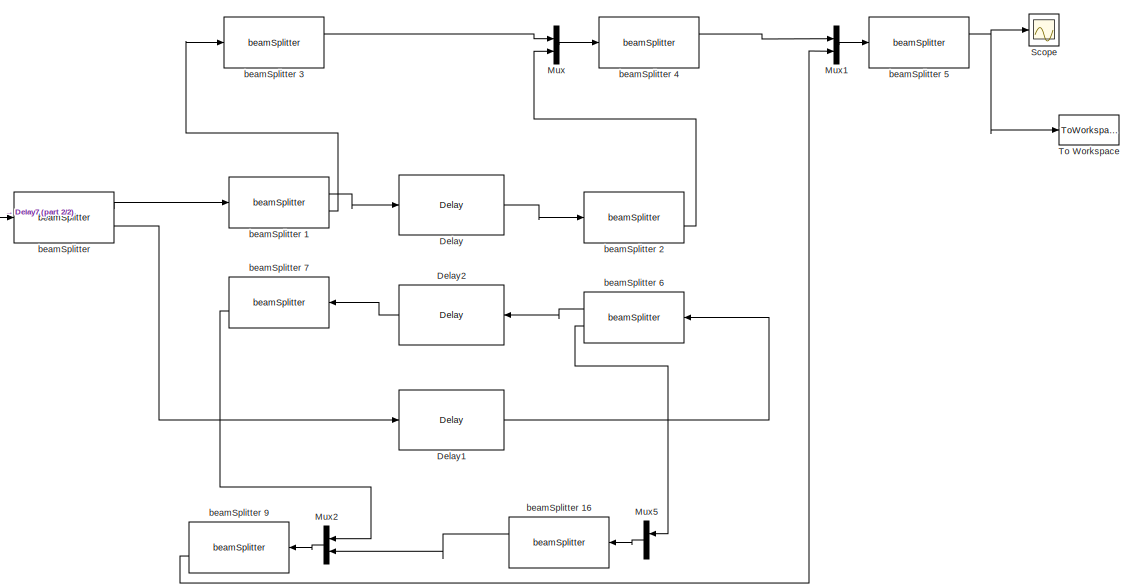
[diagram: root canvas - part 1/2, center side, full height]
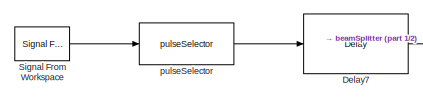
[diagram: root canvas - part 2/2, middle left region]
MODEL slx_35e18f676be5
KIND model
CONFIG InitFcn = initialization;
BLOCK [Reference] Delay  REF=BlockLib/Delay
  DelayAmt = delays(2)-delays(1)
  Ports = [1, 1]
  SourceBlock = BlockLib/Delay
BLOCK [Reference] Delay1  REF=BlockLib/Delay
  DelayAmt = delays(3)-delays(1)
  Ports = [1, 1]
  SourceBlock = BlockLib/Delay
BLOCK [Reference] Delay2  REF=BlockLib/Delay
  DelayAmt = delays(2)-delays(1)
  Ports = [1, 1]
  SourceBlock = BlockLib/Delay
BLOCK [Reference] Delay7  REF=BlockLib/Delay
  DelayAmt = delays(1)
  Ports = [1, 1]
  SourceBlock = BlockLib/Delay
BLOCK [Mux] Mux
  DisplayOption = bar
  Inputs = 2
  Ports = [2, 1]
BLOCK [Mux] Mux1
  DisplayOption = bar
  Inputs = 2
  Ports = [2, 1]
BLOCK [Mux] Mux2
  DisplayOption = bar
  Inputs = 2
  Ports = [2, 1]
BLOCK [Mux] Mux5
  DisplayOption = bar
  Inputs = 2
  Ports = [2, 1]
BLOCK [Scope] Scope
  Floating = off
  NumInputPorts = 1
  Ports = [1]
  ShowLegends = off
BLOCK [Reference] Signal From Workspace  REF=dspsrcs4/Signal From
Workspace
  OutputAfterFinalValue = Setting to zero
  Ports = [0, 1]
  SourceBlock = dspsrcs4/Signal From\nWorkspace
  SourceType = Signal From Workspace
  Ts = 1
  X = inputsignal
  ignoreOrWarnInputAndFrameLengths = off
  nsamps = 1
BLOCK [ToWorkspace] To Workspace
  FixptAsFi = on
  MaxDataPoints = inf
  Ports = [1]
  SampleTime = -1
  Save2DSignal = 3-D array (concatenate along third dimension)
  SaveFormat = Timeseries
  VariableName = simout
BLOCK [Reference] beamSplitter   REF=BlockLib/beamSplitter

  Ports = [1, 2]
  SourceBlock = BlockLib/beamSplitter
  SourceType = SubSystem
BLOCK [Reference] beamSplitter 1  REF=BlockLib/beamSplitter

  Ports = [1, 2]
  SourceBlock = BlockLib/beamSplitter
  SourceType = SubSystem
BLOCK [Reference] beamSplitter 16  REF=BlockLib/beamSplitter

  Ports = [1, 2]
  SourceBlock = BlockLib/beamSplitter
  SourceType = SubSystem
BLOCK [Reference] beamSplitter 2  REF=BlockLib/beamSplitter

  Ports = [1, 2]
  SourceBlock = BlockLib/beamSplitter
  SourceType = SubSystem
BLOCK [Reference] beamSplitter 3  REF=BlockLib/beamSplitter

  Ports = [1, 2]
  SourceBlock = BlockLib/beamSplitter
  SourceType = SubSystem
BLOCK [Reference] beamSplitter 4  REF=BlockLib/beamSplitter

  Ports = [1, 2]
  SourceBlock = BlockLib/beamSplitter
  SourceType = SubSystem
BLOCK [Reference] beamSplitter 5  REF=BlockLib/beamSplitter

  Ports = [1, 2]
  SourceBlock = BlockLib/beamSplitter
  SourceType = SubSystem
BLOCK [Reference] beamSplitter 6  REF=BlockLib/beamSplitter

  Ports = [1, 2]
  SourceBlock = BlockLib/beamSplitter
  SourceType = SubSystem
BLOCK [Reference] beamSplitter 7  REF=BlockLib/beamSplitter

  Ports = [1, 2]
  SourceBlock = BlockLib/beamSplitter
  SourceType = SubSystem
BLOCK [Reference] beamSplitter 9  REF=BlockLib/beamSplitter

  Ports = [1, 2]
  SourceBlock = BlockLib/beamSplitter
  SourceType = SubSystem
BLOCK [Reference] pulseSelector  REF=BlockLib/pulseSelector
  OutputDimensions = 1
  PCID = -1
  Ports = [1, 1]
  SourceBlock = BlockLib/pulseSelector
LINE Delay1:1 -> beamSplitter 6:1
LINE Delay2:1 -> beamSplitter 7:1
LINE Delay7:1 -> beamSplitter :1
LINE Delay:1 -> beamSplitter 2:1
LINE Mux1:1 -> beamSplitter 5:1
LINE Mux2:1 -> beamSplitter 9:1
LINE Mux5:1 -> beamSplitter 16:1
LINE Mux:1 -> beamSplitter 4:1
LINE Signal From Workspace:1 -> pulseSelector:1
LINE beamSplitter 16:1 -> Mux2:2
LINE beamSplitter 1:1 -> Delay:1
LINE beamSplitter 1:2 -> beamSplitter 3:1
LINE beamSplitter 2:2 -> Mux:2
LINE beamSplitter 3:1 -> Mux:1
LINE beamSplitter 4:1 -> Mux1:1
NET beamSplitter 5:1 -> Scope:1, To Workspace:1
LINE beamSplitter 6:1 -> Delay2:1
LINE beamSplitter 6:2 -> Mux5:1
LINE beamSplitter 7:2 -> Mux2:1
LINE beamSplitter 9:2 -> Mux1:2
LINE beamSplitter :1 -> beamSplitter 1:1
LINE beamSplitter :2 -> Delay1:1
LINE pulseSelector:1 -> Delay7:1
note: NET lines group one-source signal fan-out (src -> all destinations, sorted); 1:1 wires keep LINE
